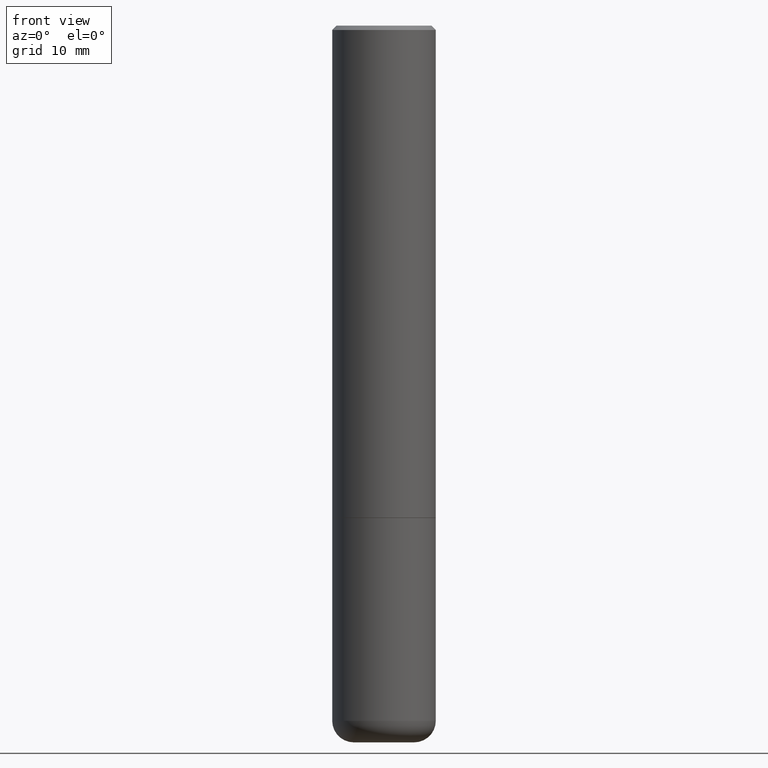
[diagram: clean part render]
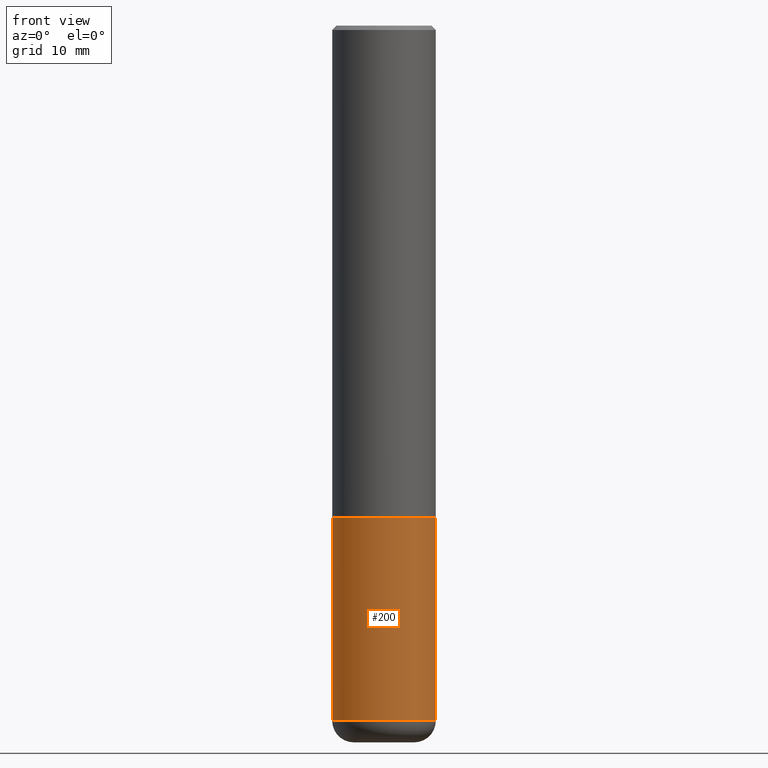
[diagram: same view with one face highlighted and labeled with its STEP entity id]
A machine part, front view. The second image highlights one B-rep face of the part: STEP entity #200.
In plain terms, the highlighted cylindrical surface (partial cylindrical patch) has radius 5.9995 mm, axis along (-0, 0, 1).
Its self-contained STEP definition (entity closure, byte-faithful):
#4 = CARTESIAN_POINT ( 'NONE',  ( -0.2361999999999999933, 1.678301941865356591E-15, -1.161852468318208757E-29 ) ) ;
#19 = CARTESIAN_POINT ( 'NONE',  ( 0.2361999999999999933, -1.649375784469496131E-15, 1.151752954443000088E-29 ) ) ;
#40 = CIRCLE ( 'NONE', #316, 0.2361999999999999933 ) ;
#66 = DIRECTION ( 'NONE',  ( -2.445468806185136597E-29, 3.491481338843145583E-15, 1.000000000000000000 ) ) ;
#77 = CARTESIAN_POINT ( 'NONE',  ( 7.750424287442554569E-29, -1.106555180719558034E-14, -3.169299999999999784 ) ) ;
#86 = DIRECTION ( 'NONE',  ( -2.445468806185136597E-29, 3.491481338843145583E-15, 1.000000000000000000 ) ) ;
#93 = VECTOR ( 'NONE', #139, 39.37007874015748143 ) ;
#97 = EDGE_CURVE ( 'NONE', #231, #348, #40, .T. ) ;
#139 = DIRECTION ( 'NONE',  ( -2.445468806185136877E-29, 3.491481338843145188E-15, 1.000000000000000000 ) ) ;
#160 = ORIENTED_EDGE ( 'NONE', *, *, #324, .F. ) ;
#166 = CYLINDRICAL_SURFACE ( 'NONE', #273, 0.2361999999999999933 ) ;
#173 = DIRECTION ( 'NONE',  ( -2.445468806185136597E-29, 3.491481338843145583E-15, 1.000000000000000000 ) ) ;
#179 = EDGE_CURVE ( 'NONE', #205, #348, #191, .T. ) ;
#189 = FACE_OUTER_BOUND ( 'NONE', #304, .T. ) ;
#191 = LINE ( 'NONE', #19, #256 ) ;
#194 = AXIS2_PLACEMENT_3D ( 'NONE', #77, #173, #241 ) ;
#200 = ADVANCED_FACE ( 'NONE', ( #189 ), #166, .T. ) ;
#205 = VERTEX_POINT ( 'NONE', #260 ) ;
#214 = DIRECTION ( 'NONE',  ( 1.000000000000000000, -6.982962677686269077E-15, 0.000000000000000000 ) ) ;
#231 = VERTEX_POINT ( 'NONE', #412 ) ;
#233 = LINE ( 'NONE', #4, #93 ) ;
#240 = ORIENTED_EDGE ( 'NONE', *, *, #179, .T. ) ;
#241 = DIRECTION ( 'NONE',  ( 1.000000000000000000, -6.982962677686264344E-15, 0.000000000000000000 ) ) ;
#256 = VECTOR ( 'NONE', #291, 39.37007874015748143 ) ;
#260 = CARTESIAN_POINT ( 'NONE',  ( 0.2362000000000000766, -1.271492759166507844E-14, -3.169299999999999784 ) ) ;
#272 = ORIENTED_EDGE ( 'NONE', *, *, #400, .T. ) ;
#273 = AXIS2_PLACEMENT_3D ( 'NONE', #294, #66, #403 ) ;
#291 = DIRECTION ( 'NONE',  ( -2.445468806185136877E-29, 3.491481338843145188E-15, 1.000000000000000000 ) ) ;
#293 = CARTESIAN_POINT ( 'NONE',  ( -0.2362000000000000766, -9.387249865330223945E-15, -3.169299999999999784 ) ) ;
#294 = CARTESIAN_POINT ( 'NONE',  ( 0.000000000000000000, 0.000000000000000000, 0.000000000000000000 ) ) ;
#298 = VERTEX_POINT ( 'NONE', #293 ) ;
#304 = EDGE_LOOP ( 'NONE', ( #160, #272, #240, #310 ) ) ;
#310 = ORIENTED_EDGE ( 'NONE', *, *, #97, .F. ) ;
#316 = AXIS2_PLACEMENT_3D ( 'NONE', #367, #86, #214 ) ;
#324 = EDGE_CURVE ( 'NONE', #298, #231, #233, .T. ) ;
#336 = CARTESIAN_POINT ( 'NONE',  ( 0.2361999999999999933, -9.484609056967400443E-15, -2.244100000000000428 ) ) ;
#348 = VERTEX_POINT ( 'NONE', #336 ) ;
#367 = CARTESIAN_POINT ( 'NONE',  ( 5.487876547960065873E-29, -7.835233272497903917E-15, -2.244100000000000428 ) ) ;
#391 = CIRCLE ( 'NONE', #194, 0.2362000000000000210 ) ;
#400 = EDGE_CURVE ( 'NONE', #298, #205, #391, .T. ) ;
#403 = DIRECTION ( 'NONE',  ( 1.000000000000000000, -6.982962677686266711E-15, 4.876176775795936353E-29 ) ) ;
#412 = CARTESIAN_POINT ( 'NONE',  ( -0.2361999999999999933, -7.772090597981385734E-15, -2.244100000000000428 ) ) ;